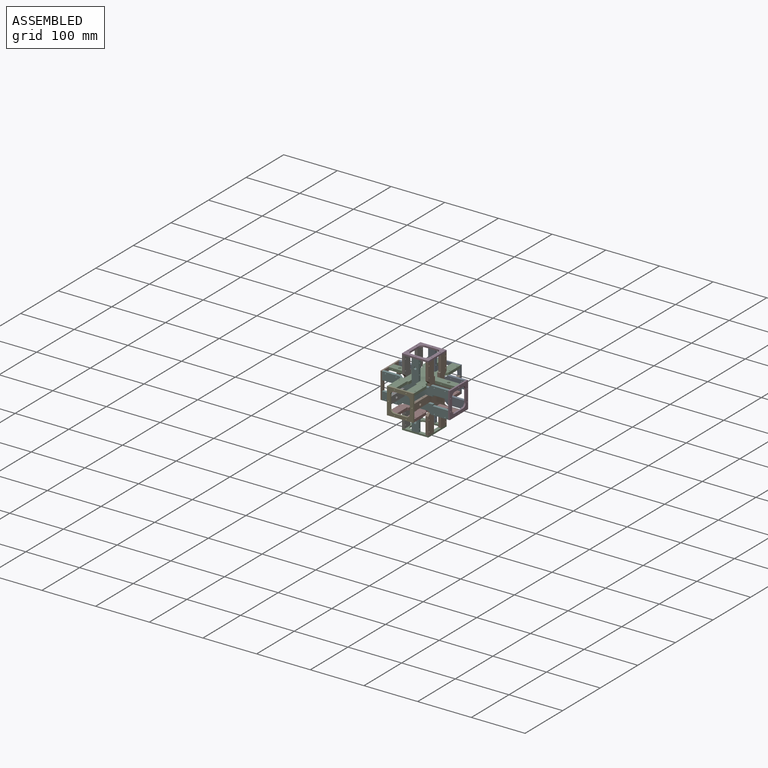
[diagram: assembled view]
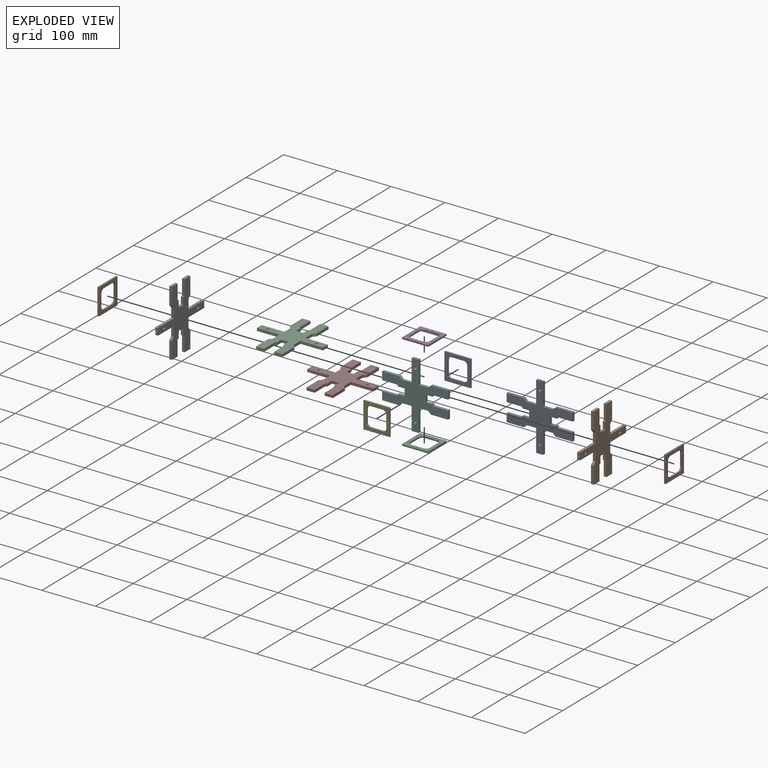
[diagram: exploded view]
GUIDED TOUR — MATED ASSEMBLY (Onshape document b1e62b2218c31deefc4c6606, AutoMate assembly b1e62b2218c31deefc4c6606_6de701cfdfe6194577458fcc_30f02f05b2ea3dd4349eb3cd_default)

This assembly has 12 components, labeled P0..P11 below (a component is one placed occurrence of a part; the same part can appear more than once), held together by 10 mates. A mate is a constraint between two components; its type names the relative motion it leaves free:
  FASTENED — locks the two components together rigidly (no relative motion).
Axis/direction vectors are unit vectors and 'through' points are millimeter coordinates, both in the assembly's world frame.

MATES
  1. FASTENED "Fastened 5": P7 <-> P9, direction (0.000, 0.000, 1.000) through (-101.22, 54.80, 2.24) mm
  2. FASTENED "Fastened 11": P4 <-> P6, direction (0.000, 1.000, 0.000) through (-142.72, -0.20, 21.74) mm
  3. FASTENED "Fastened 6": P5 <-> P11, direction (0.000, 0.000, 1.000) through (-120.72, 39.30, 83.24) mm
  4. FASTENED "Fastened 2": P5 <-> P10, direction (-1.000, 0.000, 0.000) through (-127.22, 41.80, 41.24) mm
  5. FASTENED "Fastened 1": P8 <-> P10, direction (1.000, 0.000, 0.000) through (-114.22, 80.80, 41.24) mm
  6. FASTENED "Fastened 4": P5 <-> P9, direction (1.000, 0.000, 0.000) through (-101.22, 41.80, 28.24) mm
  7. FASTENED "Fastened 7": P7 <-> P3, direction (1.000, 0.000, 0.000) through (-59.22, 61.30, -0.26) mm
  8. FASTENED "Fastened 8": P2 <-> P5, direction (0.000, 0.000, 1.000) through (-120.72, 39.30, -39.76) mm
  9. FASTENED "Fastened 10": P1 <-> P7, direction (1.000, 0.000, 0.000) through (-182.22, 61.30, -0.26) mm
  10. FASTENED "Fastened 3": P5 <-> P6, direction (-1.000, 0.000, 0.000) through (-140.22, 41.80, 28.24) mm

ASSEMBLY ORDER
  1. P5 — the base component [order heuristic]
  2. P7 — core [order heuristic]
  3. P10 — core [order heuristic]
  4. P8 — core [order heuristic]
  5. P6 — core [order heuristic]
  6. P9 — core [order heuristic]
  7. P2 [order verified]
  8. P11 [order verified]
  9. P1 [order verified]
  10. P3 [order verified]
  11. P0 [order verified]
  12. P4 [order verified]
Order-tag legend:
  [order verified] — this step's position reverses a verified removal order: the component was checked to insert without passing through the ones already placed.
  [order heuristic] — the first 6 components form the assembly's core: parts whose collision-free extraction could not be verified, listed in mate-graph order.

Of the 12 components, 6 carry the full construction recipe — the FeatureScript program that regenerates the part's solid from scratch; the rest are supplied as boundary geometry only.
Each toured component is shown spotlighted twice — in the assembled view, then in the exploded view, where a leader line traces a displaced component back to its assembled socket (saturated green if recipe-attached, orange if geometry-only; every other component desaturated gray) — followed by its recipe or geometry summary and the mates that hold it.
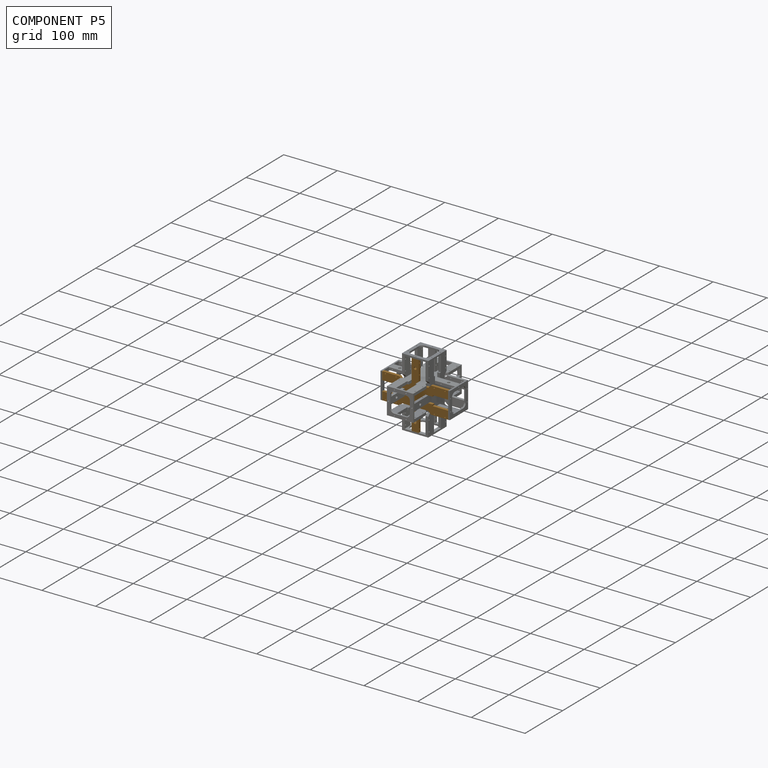
[diagram: component P5 — assembled]
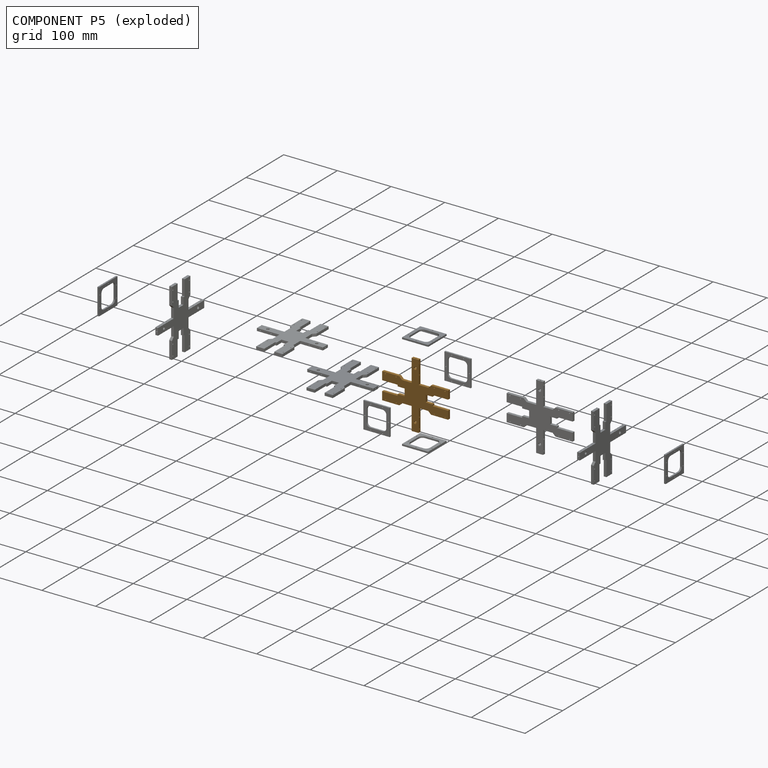
[diagram: component P5 — exploded]
COMPONENT P5 — geometry summary (no construction recipe available for this part):
  bounding box: 123.0 x 123.0 x 5.0 mm
  B-rep topology: 1 solid, 58 faces, 346 edges
  volume: 25251 mm^3 (33% of its bounding box)
  symmetry: 2-fold rotationally symmetric about the x axis; 2-fold rotationally symmetric about the y axis; 2-fold rotationally symmetric about the z axis; mirror-symmetric across its x mid-plane, y mid-plane, z mid-plane
Held by: FASTENED mate "Fastened 6" to P11; FASTENED mate "Fastened 2" to P10; FASTENED mate "Fastened 4" to P9; FASTENED mate "Fastened 8" to P2; FASTENED mate "Fastened 3" to P6.
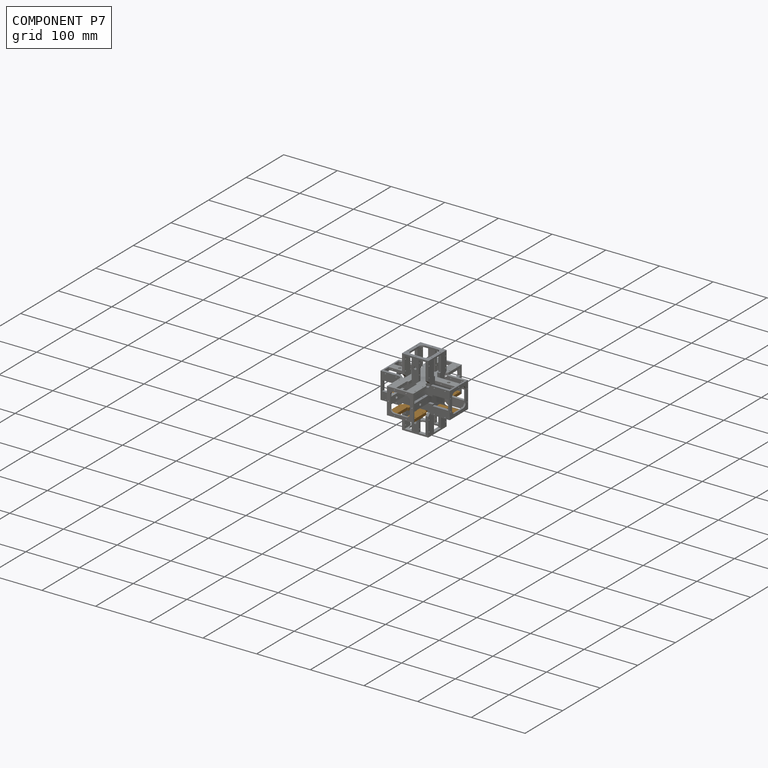
[diagram: component P7 — assembled]
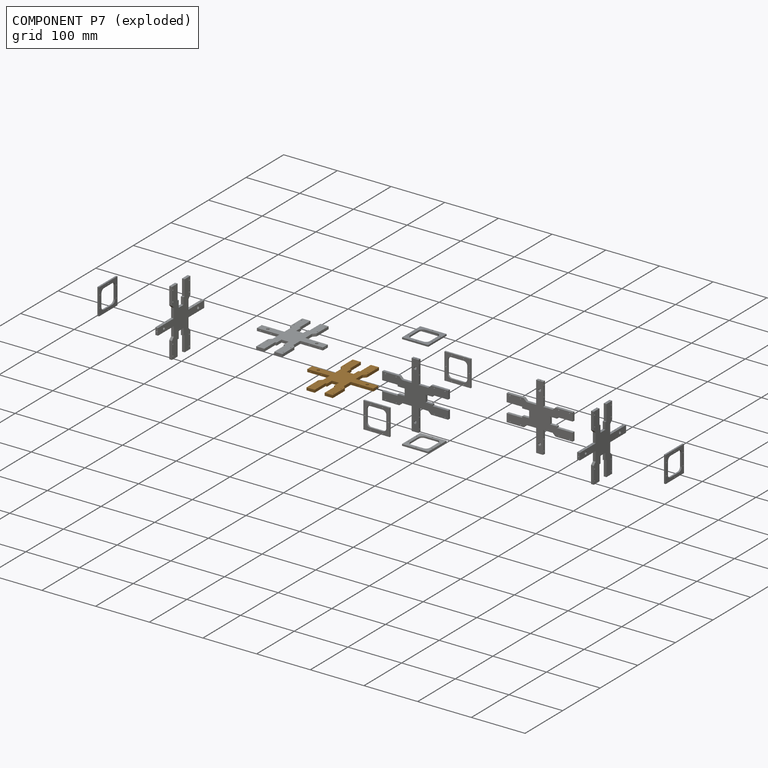
[diagram: component P7 — exploded]
COMPONENT P7 — geometry summary (no construction recipe available for this part):
  bounding box: 123.0 x 123.0 x 5.0 mm
  B-rep topology: 1 solid, 58 faces, 346 edges
  volume: 25251 mm^3 (33% of its bounding box)
  symmetry: 2-fold rotationally symmetric about the x axis; 2-fold rotationally symmetric about the y axis; 2-fold rotationally symmetric about the z axis; mirror-symmetric across its x mid-plane, y mid-plane, z mid-plane
Held by: FASTENED mate "Fastened 5" to P9; FASTENED mate "Fastened 7" to P3; FASTENED mate "Fastened 10" to P1.
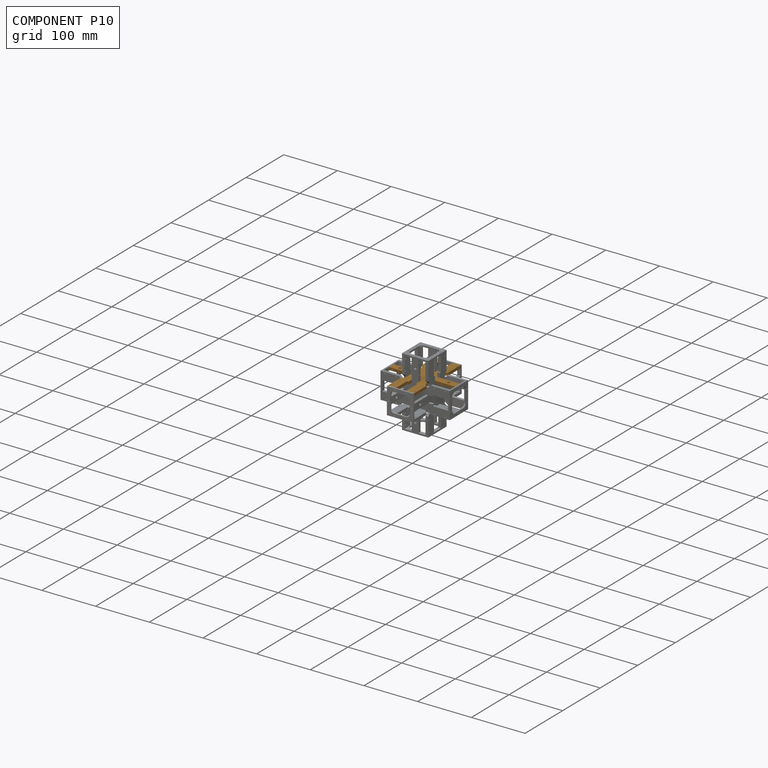
[diagram: component P10 — assembled]
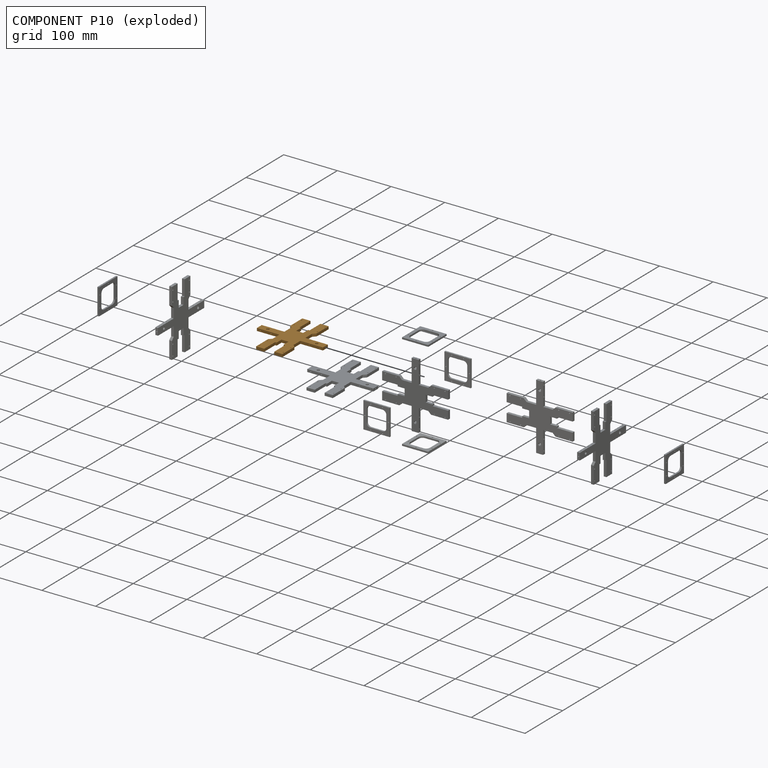
[diagram: component P10 — exploded]
COMPONENT P10 — geometry summary (no construction recipe available for this part):
  bounding box: 123.0 x 123.0 x 5.0 mm
  B-rep topology: 1 solid, 58 faces, 346 edges
  volume: 25251 mm^3 (33% of its bounding box)
  symmetry: 2-fold rotationally symmetric about the x axis; 2-fold rotationally symmetric about the y axis; 2-fold rotationally symmetric about the z axis; mirror-symmetric across its x mid-plane, y mid-plane, z mid-plane
Held by: FASTENED mate "Fastened 2" to P5; FASTENED mate "Fastened 1" to P8.
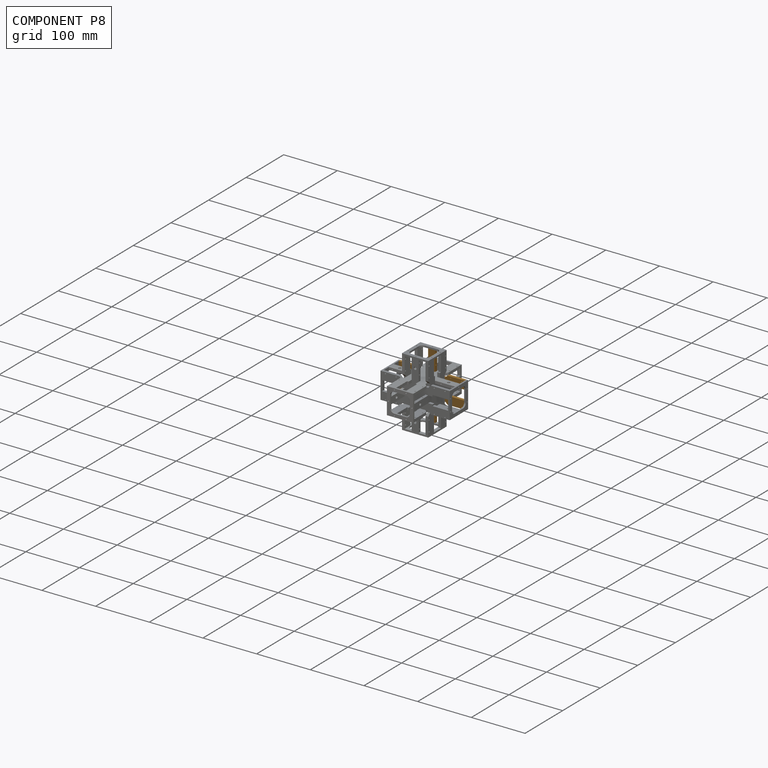
[diagram: component P8 — assembled]
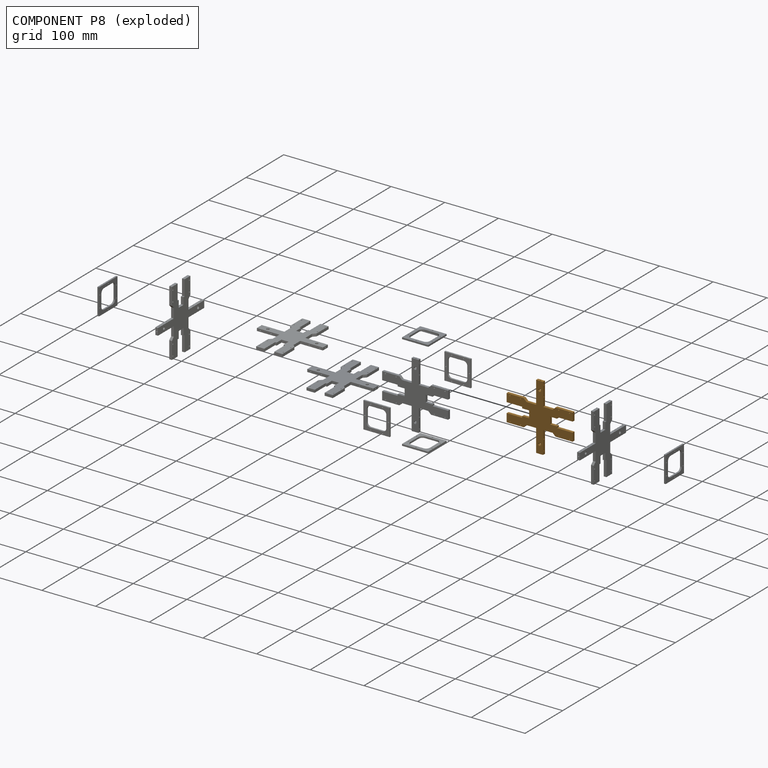
[diagram: component P8 — exploded]
COMPONENT P8 — geometry summary (no construction recipe available for this part):
  bounding box: 123.0 x 123.0 x 5.0 mm
  B-rep topology: 1 solid, 58 faces, 346 edges
  volume: 25251 mm^3 (33% of its bounding box)
  symmetry: 2-fold rotationally symmetric about the x axis; 2-fold rotationally symmetric about the y axis; 2-fold rotationally symmetric about the z axis; mirror-symmetric across its x mid-plane, y mid-plane, z mid-plane
Held by: FASTENED mate "Fastened 1" to P10.
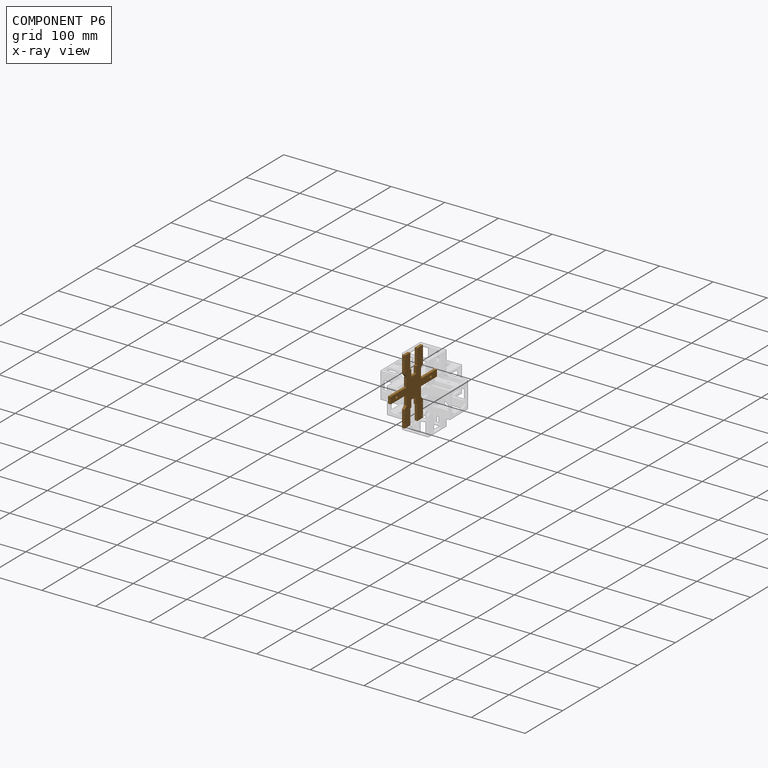
[diagram: component P6 — x-ray view]
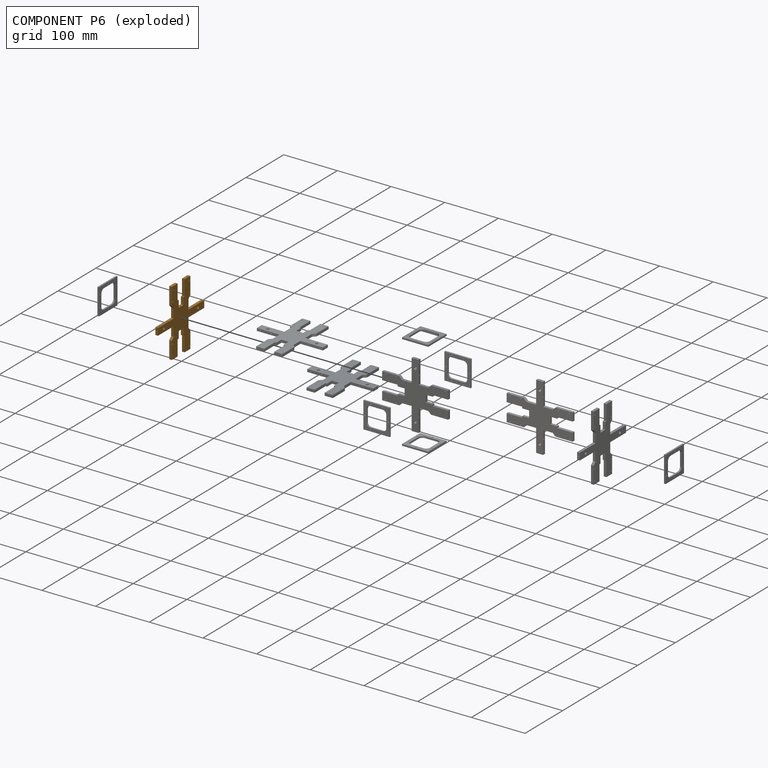
[diagram: component P6 — exploded]
COMPONENT P6 — geometry summary (no construction recipe available for this part):
  bounding box: 123.0 x 123.0 x 5.0 mm
  B-rep topology: 1 solid, 58 faces, 346 edges
  volume: 25251 mm^3 (33% of its bounding box)
  symmetry: 2-fold rotationally symmetric about the x axis; 2-fold rotationally symmetric about the y axis; 2-fold rotationally symmetric about the z axis; mirror-symmetric across its x mid-plane, y mid-plane, z mid-plane
Held by: FASTENED mate "Fastened 11" to P4; FASTENED mate "Fastened 3" to P5.
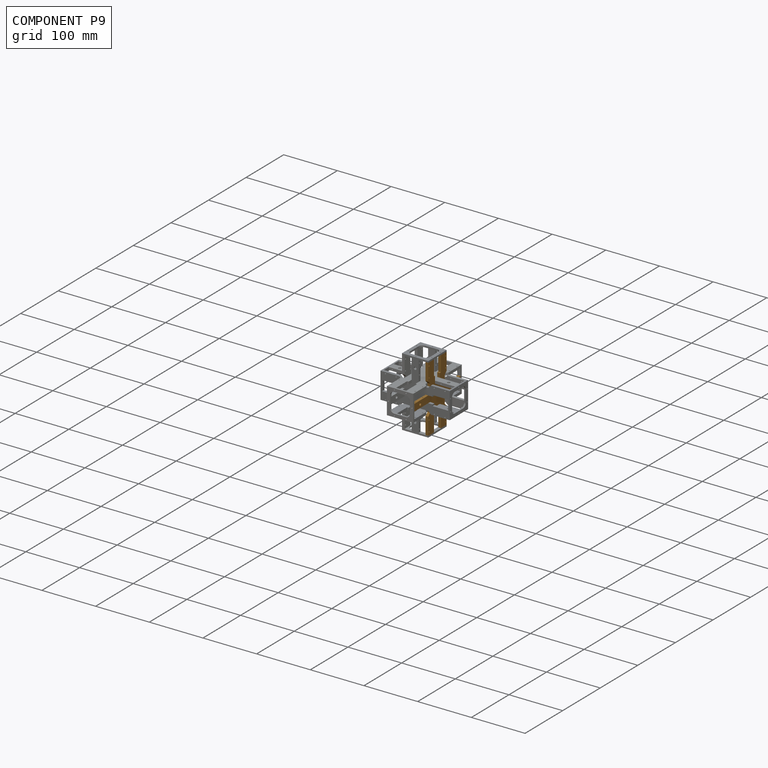
[diagram: component P9 — assembled]
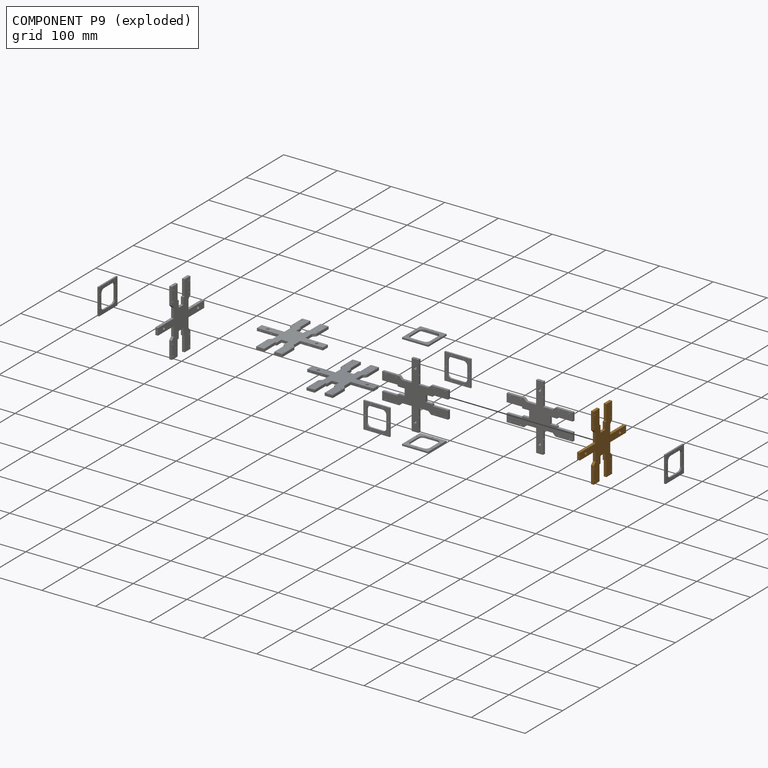
[diagram: component P9 — exploded]
COMPONENT P9 — geometry summary (no construction recipe available for this part):
  bounding box: 123.0 x 123.0 x 5.0 mm
  B-rep topology: 1 solid, 58 faces, 346 edges
  volume: 25251 mm^3 (33% of its bounding box)
  symmetry: 2-fold rotationally symmetric about the x axis; 2-fold rotationally symmetric about the y axis; 2-fold rotationally symmetric about the z axis; mirror-symmetric across its x mid-plane, y mid-plane, z mid-plane
Held by: FASTENED mate "Fastened 5" to P7; FASTENED mate "Fastened 4" to P5.
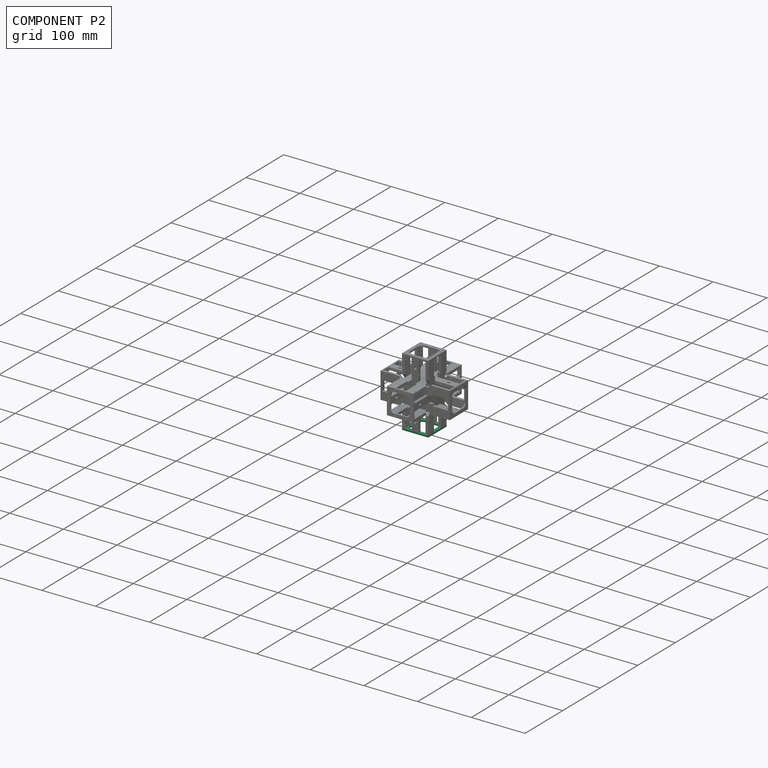
[diagram: component P2 — assembled]
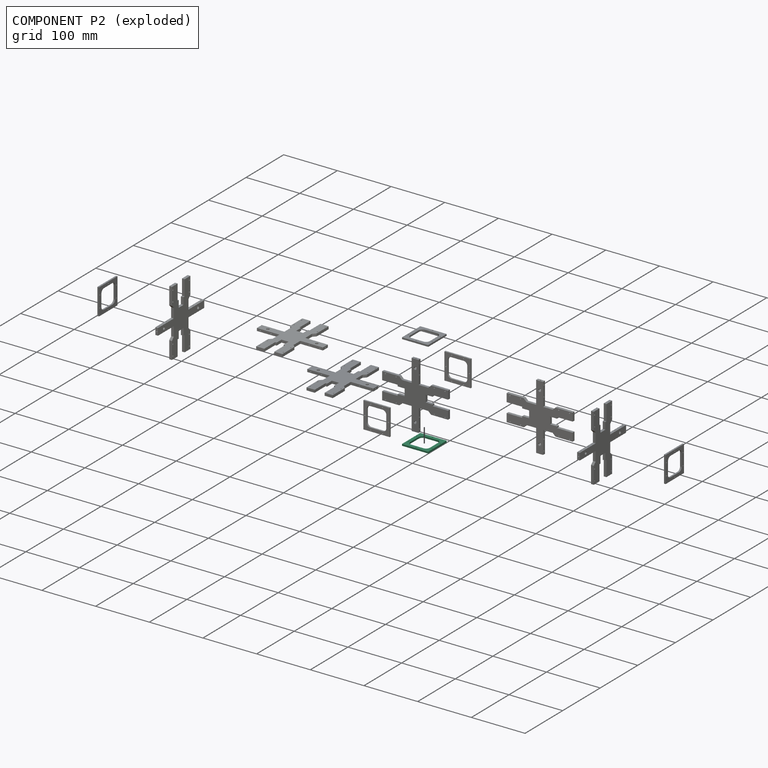
[diagram: component P2 — exploded]
COMPONENT P2 — same part as P0 (CADFS 00986107); its construction recipe is shown at P0.
Held by: FASTENED mate "Fastened 8" to P5.
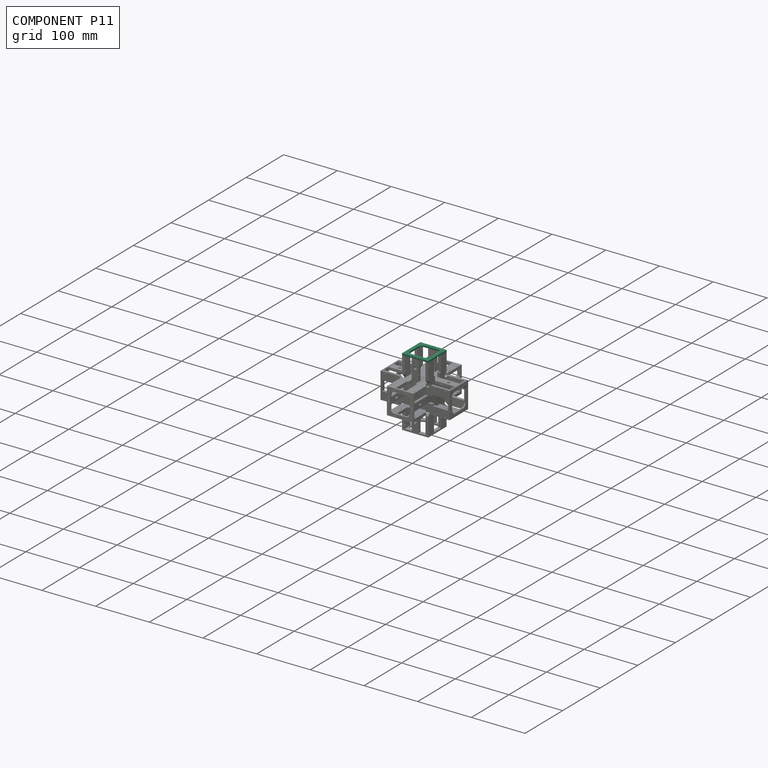
[diagram: component P11 — assembled]
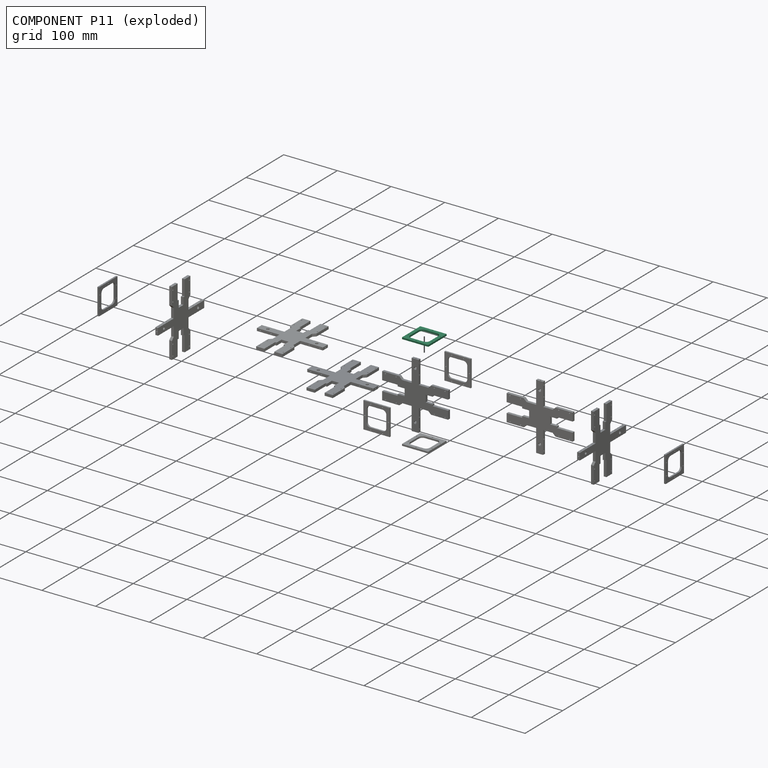
[diagram: component P11 — exploded]
COMPONENT P11 — same part as P0 (CADFS 00986107); its construction recipe is shown at P0.
Held by: FASTENED mate "Fastened 6" to P5.
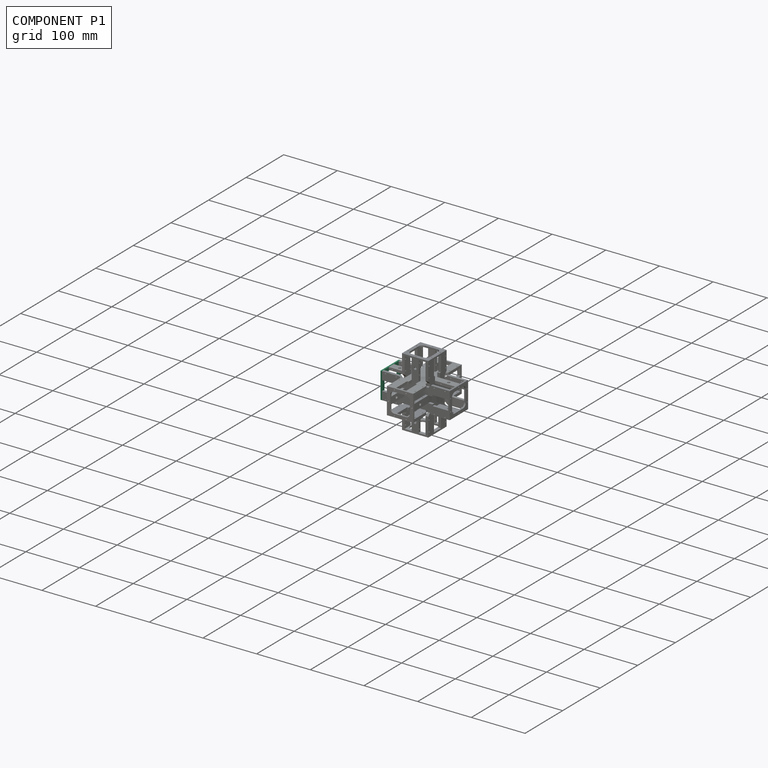
[diagram: component P1 — assembled]
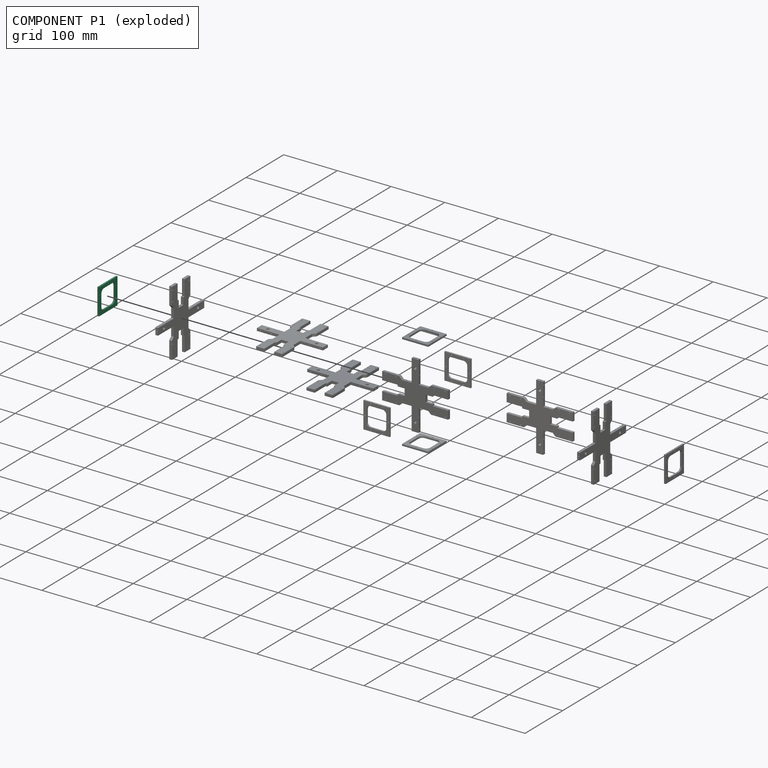
[diagram: component P1 — exploded]
COMPONENT P1 — same part as P0 (CADFS 00986107); its construction recipe is shown at P0.
Held by: FASTENED mate "Fastened 10" to P7.
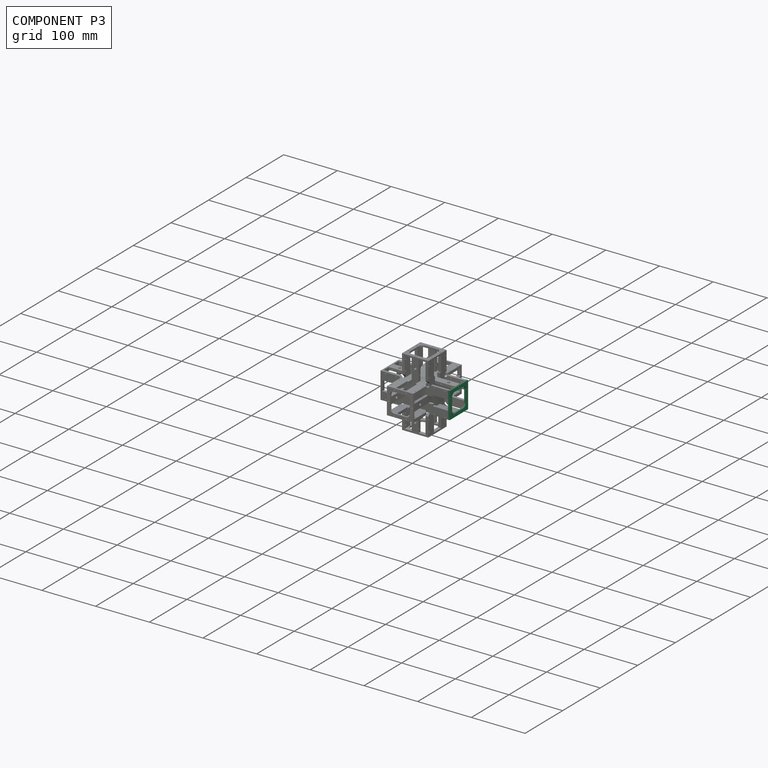
[diagram: component P3 — assembled]
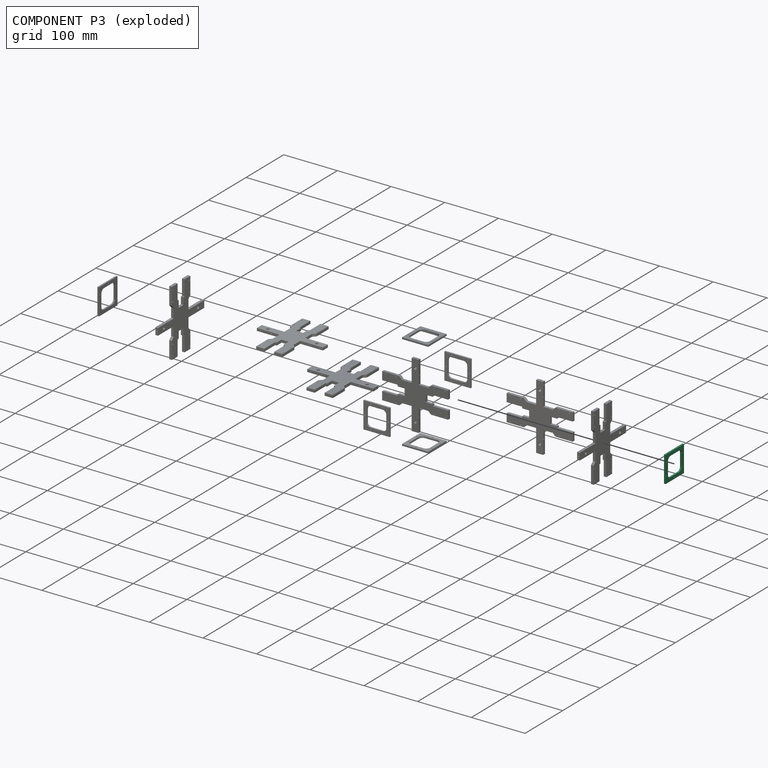
[diagram: component P3 — exploded]
COMPONENT P3 — same part as P0 (CADFS 00986107); its construction recipe is shown at P0.
Held by: FASTENED mate "Fastened 7" to P7.
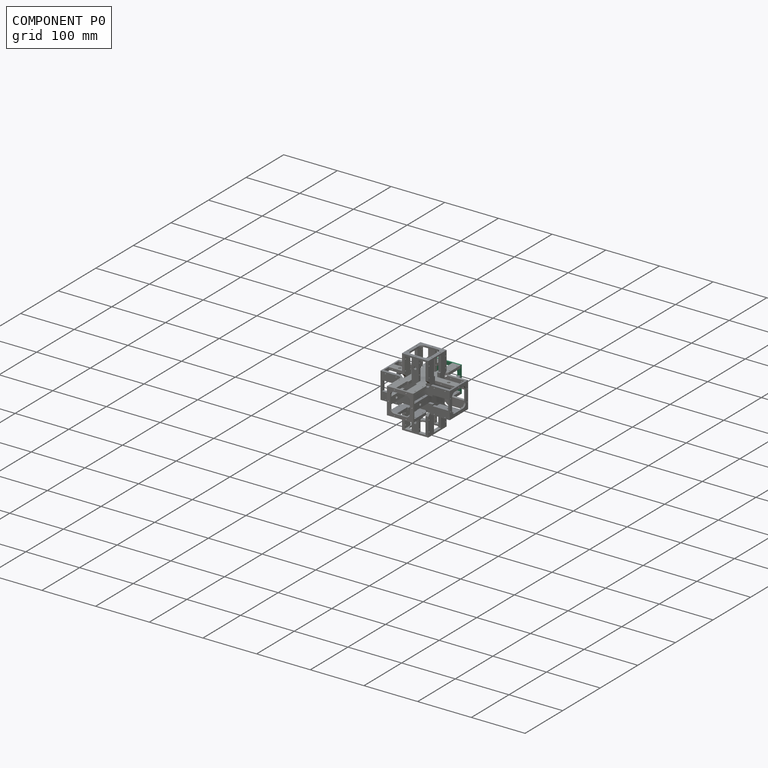
[diagram: component P0 — assembled]
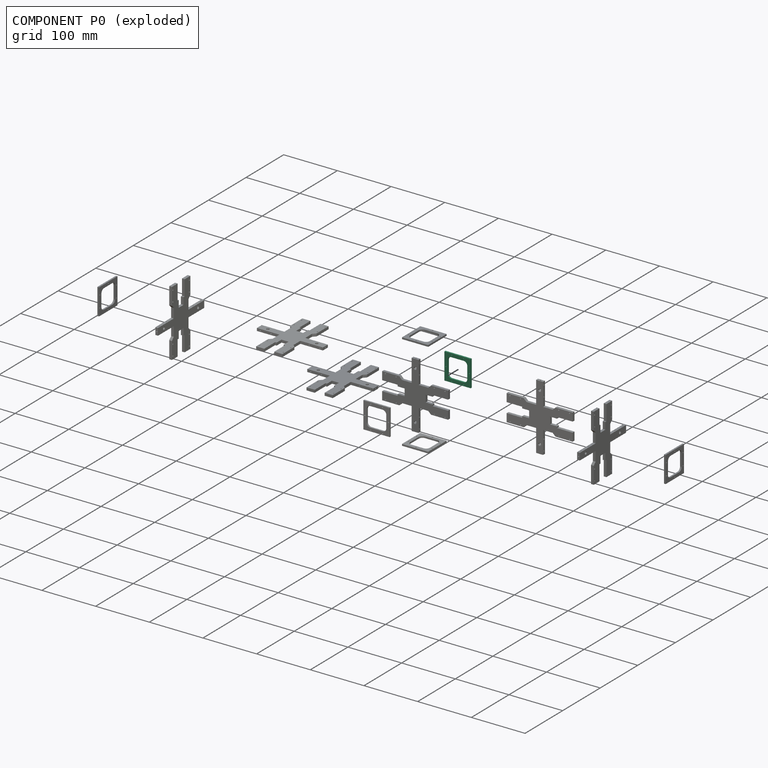
[diagram: component P0 — exploded]
COMPONENT P0 — recipe-attached (CADFS 00986107, mesh-verified: the recipe's output STEP matches this component's geometry to below the mesh-comparison resolution (tessellation chordal tolerance ~0.104 mm)).
Held by: no mates (free).
Construction recipe (FeatureScript — the CAD program that rebuilds this solid; sketch coordinates are in the units given by the * unit suffixes, e.g. mm):

FeatureScript 1511;
import(path : "onshape/std/geometry.fs", version : "1511.0");
import(path : "onshape/std/common.fs", version : "1511.0");
const mm = millimeter;
const VERTEX = EntityType.VERTEX;
const EDGE = EntityType.EDGE;
const FACE = EntityType.FACE;
const BODY = EntityType.BODY;
function v(x, y){return vector(x, y);}
function OD(order){return orderDisambiguation(order);}
function OSD(set){return originalSetDisambiguation(set);}
function TD(topology){return topologyDisambiguation(topology);}
function TDD(query){return trueDependencyDisambiguation(query);}
function sQuery(a, b, c) {return sketchEntityQuery(a, b, c);}

annotation { "Feature Type Name" : "Feature", "Feature Type Description" : "" }
export const myFeature = defineFeature(function(context is Context, id is Id, definition is map)
    precondition{}
    {
        {
            var Q0;
            Q0=qCreatedBy(makeId("Top.planeOp"),FACE);
            var sketch = newSketch(context, id + "F0", { "sketchPlane" : qUnion([Q0])});
            skLineSegment(sketch, "E0.bottom", {"start": v(18.2, 18.2) * mm, "end": v(-18.2, 18.2) * mm});
            skLineSegment(sketch, "E0.top", {"start": v(18.2, -18.2) * mm, "end": v(-18.2, -18.2) * mm});
            skLineSegment(sketch, "E0.left", {"start": v(18.2, 18.2) * mm, "end": v(18.2, -18.2) * mm});
            skLineSegment(sketch, "E0.right", {"start": v(-18.2, 18.2) * mm, "end": v(-18.2, -18.2) * mm});
            skPoint(sketch, "E0.middle", {"position": v(0, 0) * mm});
            skLineSegment(sketch, "E1.bottom", {"start": v(19.5, 19.5) * mm, "end": v(-19.5, 19.5) * mm});
            skLineSegment(sketch, "E1.right", {"start": v(-19.5, 19.5) * mm, "end": v(-19.5, -19.5) * mm});
            skLineSegment(sketch, "E2", {"start": v(-19.5, -19.5) * mm, "end": v(19.5, -19.5) * mm});
            skLineSegment(sketch, "E3", {"start": v(19.5, 19.5) * mm, "end": v(19.5, -19.5) * mm});
            skLineSegment(sketch, "E4", {"start": v(-24.5, -24.5) * mm, "end": v(24.5, -24.5) * mm});
            skLineSegment(sketch, "E5", {"start": v(24.5, -24.5) * mm, "end": v(24.5, 24.5) * mm});
            skLineSegment(sketch, "E6", {"start": v(24.5, 24.5) * mm, "end": v(-24.5, 24.5) * mm});
            skLineSegment(sketch, "E7", {"start": v(-24.5, -24.5) * mm, "end": v(-24.5, 24.5) * mm});
            skCircle(sketch, "E8", {"center": v(0, 22) * mm, "radius": 1 * mm});
            skCircle(sketch, "E9.MirrorC", {"center": v(0, -22) * mm, "radius": 1 * mm});
            skLineSegment(sketch, "E10", {"start": v(-24.5, 24.5) * mm, "end": v(-22, 24.5) * mm});
            skLineSegment(sketch, "E11", {"start": v(-18.2, -18.2) * mm, "end": v(-18.2, -19.5) * mm});
            skCircle(sketch, "E12", {"center": v(-22, -11) * mm, "radius": 1 * mm});
            skCircle(sketch, "E13", {"center": v(-22, 11) * mm, "radius": 1 * mm});
            skCircle(sketch, "E14", {"center": v(22, 11) * mm, "radius": 1 * mm});
            skCircle(sketch, "E15", {"center": v(22, -11) * mm, "radius": 1 * mm});
            skSolve(sketch);
        }
        {
            var Q0;
            Q0=makeQuery(id+"F0.imprint","IMPRINT",FACE,{"disambiguationData":[TD([[makeQuery(id+"F0.imprint","IMPRINT",EDGE,{"derivedFrom":sQuery(id+"F0.wireOp",EDGE,"E0.bottom")}),-1.0]])]});
            var Q1;
            Q1=makeQuery(id+"F0.imprint","IMPRINT",FACE,{"disambiguationData":[TD([[makeQuery(id+"F0.imprint","IMPRINT",EDGE,{"derivedFrom":sQuery(id+"F0.wireOp",EDGE,"E1.bottom")}),-1.0]])]});
            extrude(context, id + "F1", {"entities" : qUnion([Q0, Q1]), "depth" : 3 * mm, "offsetDistance" : 25 * mm});
        }
        {
            var Q0;
            Q0=makeQuery(id+"F1.opExtrude","SWEPT_EDGE",EDGE,{"disambiguationData":[OSD([sQuery(id+"F0.wireOp",EDGE,"E0.bottom"),sQuery(id+"F0.wireOp",EDGE,"E0.right")])]});
            var Q1;
            Q1=makeQuery(id+"F1.opExtrude","SWEPT_EDGE",EDGE,{"disambiguationData":[OSD([sQuery(id+"F0.wireOp",EDGE,"E0.top"),sQuery(id+"F0.wireOp",EDGE,"E0.right")])]});
            var Q2;
            Q2=makeQuery(id+"F1.opExtrude","SWEPT_EDGE",EDGE,{"disambiguationData":[OSD([sQuery(id+"F0.wireOp",EDGE,"E0.top"),sQuery(id+"F0.wireOp",EDGE,"E0.left")])]});
            var Q3;
            Q3=makeQuery(id+"F1.opExtrude","SWEPT_EDGE",EDGE,{"disambiguationData":[OSD([sQuery(id+"F0.wireOp",EDGE,"E0.bottom"),sQuery(id+"F0.wireOp",EDGE,"E0.left")])]});
            fillet(context, id + "F2", {"entities" : qUnion([Q0, Q1, Q2, Q3]), "tangentPropagation" : true, "radius" : 7 * mm, "defaultsChanged" : true, "vertexSettings" : [], "allowEdgeOverflow" : false});
        }
    });
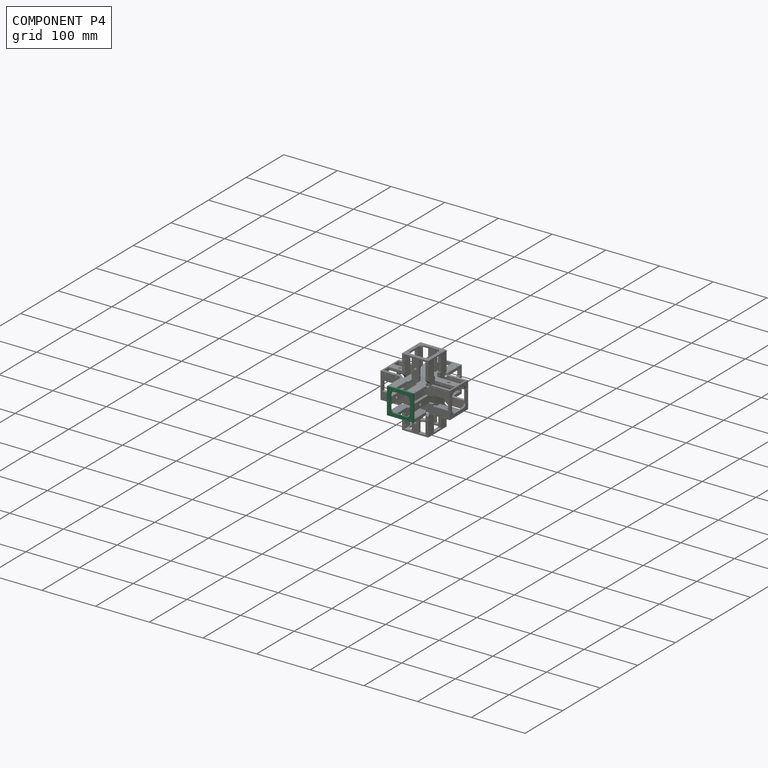
[diagram: component P4 — assembled]
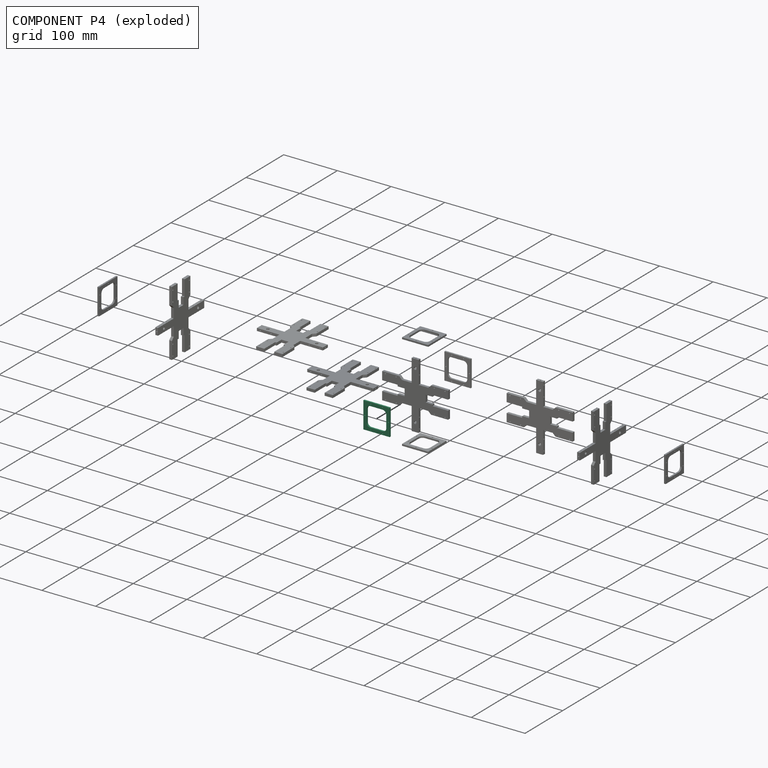
[diagram: component P4 — exploded]
COMPONENT P4 — same part as P0 (CADFS 00986107); its construction recipe is shown at P0.
Held by: FASTENED mate "Fastened 11" to P6.
PROVENANCE & LICENSES
Assembly (occurrences, transforms, mates, per-part STEP geometry): AutoMate dataset, Zenodo record 7776208, CC0.
Construction recipes: CADFS (HuggingFace VladPyatov/CADFS, CC-BY-4.0, layered over the ABC dataset), FeatureScript reconstruction programs keyed by ABC model id.
Join: ABC meta listings map ABC model id -> Onshape documentId; within a shared document, parts are matched by geometric signature (bounding-box dims + volume at 0.1% relative tolerance, exact B-rep face/solid counts).
Verification: 6 of this assembly's 12 components carry a recipe attachment, and every attachment is mesh-verified: the CADFS STEP and the AutoMate member STEP were compared as meshes in their shared local frame (symmetric sampled-point-to-mesh distance); worst across the 6 attachments: below the mesh-comparison resolution (tessellation chordal tolerance ~0.104 mm) on a 69 mm part.
Renders: orthographic iso camera (az 35 / el 25); the floor grid conveys scale (grid pitch printed in each image; no ruler). In the exploded view each component is displaced by its stored offset vector: the offsets alone carry the explosion direction (mate normal/axis signs are not orientation cues and do not encode it), and separation distances are assigned per mate-chain, not proportionally to assembly-order depth.
